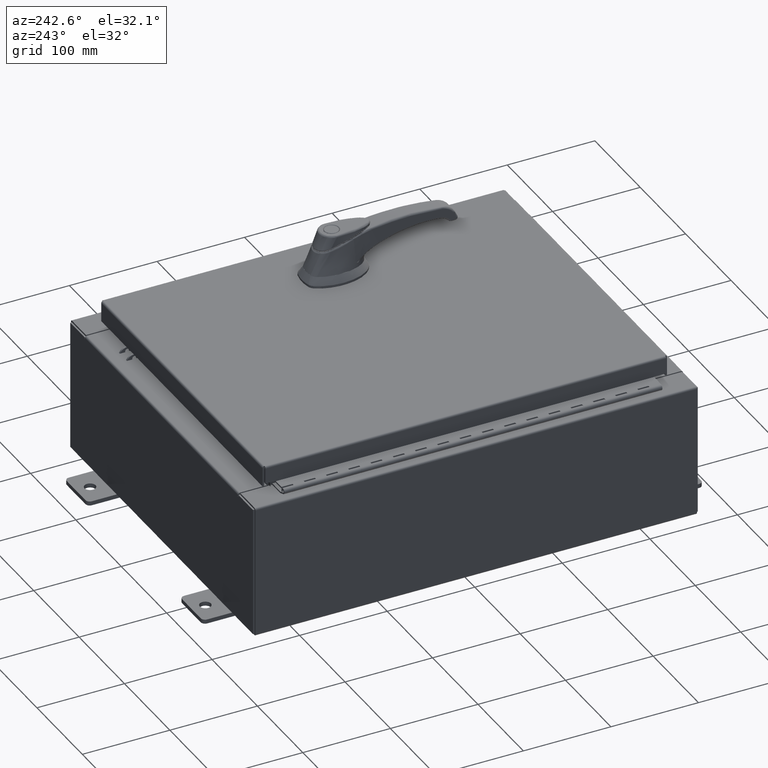
[diagram: clean part render]
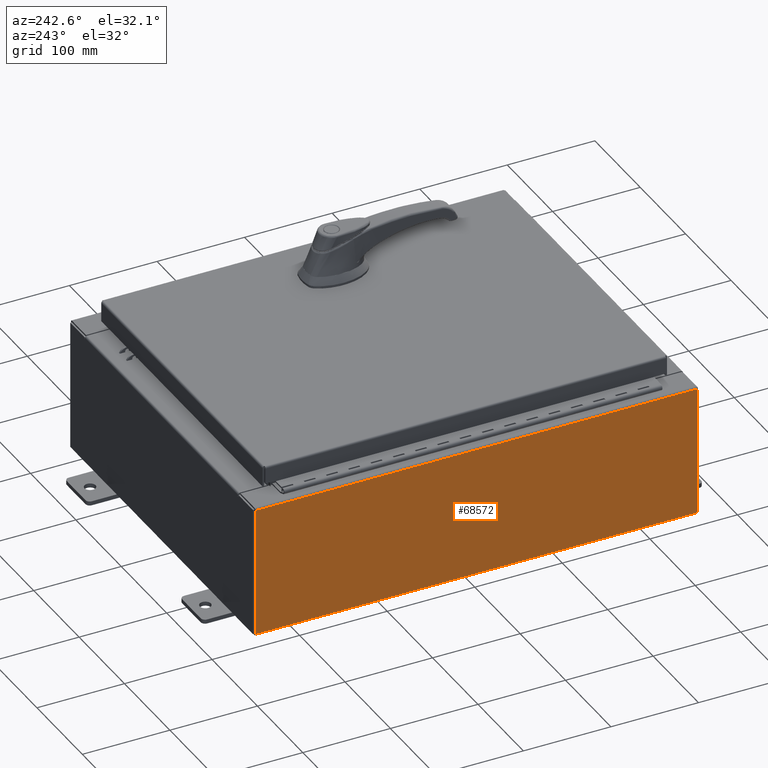
[diagram: same view with one face highlighted and labeled with its STEP entity id]
A machine part, auxiliary view. The second image highlights one B-rep face of the part: STEP entity #68572.
In plain terms, the highlighted planar face has unit normal (1, 0, 0).
Its self-contained STEP definition (entity closure, byte-faithful):
#4492 = CARTESIAN_POINT ( 'NONE',  ( -7.999999999999997300, 9.925299999999998200, 0.01299999999999984500 ) ) ;
#5460 = DIRECTION ( 'NONE',  ( 3.503965158194251300E-015, 0.0000000000000000000, -1.000000000000000000 ) ) ;
#8212 = CARTESIAN_POINT ( 'NONE',  ( -7.999999999999997300, 9.925299999999998200, -2.829253492156558900E-014 ) ) ;
#8518 = EDGE_LOOP ( 'NONE', ( #35940, #87843, #48039, #91721 ) ) ;
#11441 = VERTEX_POINT ( 'NONE', #41149 ) ;
#14916 = DIRECTION ( 'NONE',  ( -0.0000000000000000000, 1.000000000000000000, -0.0000000000000000000 ) ) ;
#16873 = VECTOR ( 'NONE', #14916, 39.37007874015748100 ) ;
#16888 = VERTEX_POINT ( 'NONE', #75587 ) ;
#19549 = LINE ( 'NONE', #91417, #16873 ) ;
#20716 = EDGE_CURVE ( 'NONE', #61233, #83708, #19549, .T. ) ;
#26549 = LINE ( 'NONE', #8212, #66582 ) ;
#28620 = FACE_OUTER_BOUND ( 'NONE', #8518, .T. ) ;
#31655 = EDGE_CURVE ( 'NONE', #16888, #11441, #100146, .T. ) ;
#35940 = ORIENTED_EDGE ( 'NONE', *, *, #31655, .T. ) ;
#41149 = CARTESIAN_POINT ( 'NONE',  ( -8.000000000000017800, 9.925299999999996500, 5.837599999999999200 ) ) ;
#45038 = LINE ( 'NONE', #91586, #87791 ) ;
#47913 = PLANE ( 'NONE',  #66138 ) ;
#48039 = ORIENTED_EDGE ( 'NONE', *, *, #20716, .F. ) ;
#48396 = CARTESIAN_POINT ( 'NONE',  ( -8.000000000000017800, -9.925300000000000000, 5.837599999999999200 ) ) ;
#48901 = EDGE_CURVE ( 'NONE', #11441, #83708, #26549, .T. ) ;
#55026 = EDGE_CURVE ( 'NONE', #61233, #16888, #45038, .T. ) ;
#56549 = DIRECTION ( 'NONE',  ( 1.000000000000000000, 0.0000000000000000000, 3.503965158194251300E-015 ) ) ;
#61233 = VERTEX_POINT ( 'NONE', #93236 ) ;
#65986 = DIRECTION ( 'NONE',  ( 0.0000000000000000000, 1.000000000000000000, 0.0000000000000000000 ) ) ;
#66138 = AXIS2_PLACEMENT_3D ( 'NONE', #99126, #56549, #5460 ) ;
#66582 = VECTOR ( 'NONE', #76474, 39.37007874015748100 ) ;
#68572 = ADVANCED_FACE ( 'NONE', ( #28620 ), #47913, .F. ) ;
#75587 = CARTESIAN_POINT ( 'NONE',  ( -8.000000000000017800, -9.925300000000000000, 5.837599999999999200 ) ) ;
#76474 = DIRECTION ( 'NONE',  ( 3.503965158194252100E-015, 0.0000000000000000000, -1.000000000000000000 ) ) ;
#77430 = VECTOR ( 'NONE', #65986, 39.37007874015748100 ) ;
#83708 = VERTEX_POINT ( 'NONE', #4492 ) ;
#87791 = VECTOR ( 'NONE', #100232, 39.37007874015748100 ) ;
#87843 = ORIENTED_EDGE ( 'NONE', *, *, #48901, .T. ) ;
#91417 = CARTESIAN_POINT ( 'NONE',  ( -7.999999999999997300, 9.925299999999998200, 0.01299999999999984700 ) ) ;
#91586 = CARTESIAN_POINT ( 'NONE',  ( -7.999999999999997300, -9.925300000000001800, -2.829253492156558900E-014 ) ) ;
#91721 = ORIENTED_EDGE ( 'NONE', *, *, #55026, .T. ) ;
#93236 = CARTESIAN_POINT ( 'NONE',  ( -7.999999999999997300, -9.925300000000000000, 0.01299999999999984700 ) ) ;
#99126 = CARTESIAN_POINT ( 'NONE',  ( -7.999999999999997300, 0.0000000000000000000, -2.829253492156558900E-014 ) ) ;
#100146 = LINE ( 'NONE', #48396, #77430 ) ;
#100232 = DIRECTION ( 'NONE',  ( -3.503965158194252100E-015, 0.0000000000000000000, 1.000000000000000000 ) ) ;